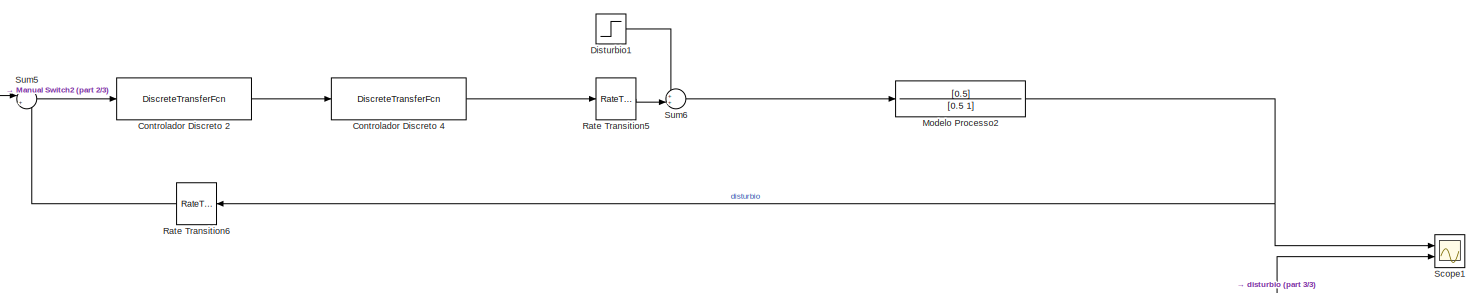
[diagram: root canvas - part 1/3, full width, top band]
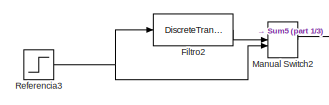
[diagram: root canvas - part 2/3, top left region]
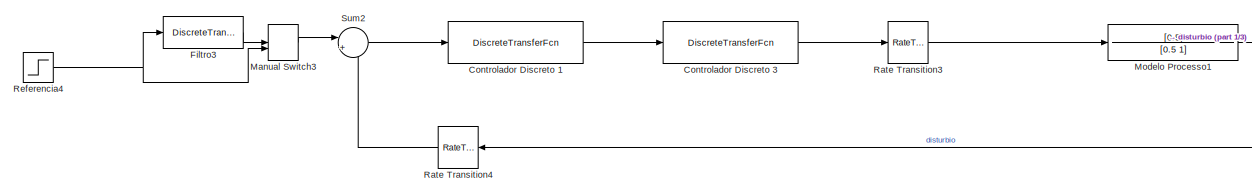
[diagram: root canvas - part 3/3, bottom center region]
MODEL slx_0917408c791c
KIND model
CONFIG AbsTol = auto
CONFIG EnableMultiTasking = off
CONFIG FixedStep = auto
CONFIG MaxStep = auto
CONFIG MinStep = auto
CONFIG RelTol = 1e-3
CONFIG SampleTimeConstraint = Unconstrained
CONFIG SolverName = VariableStepAuto
CONFIG StartTime = 0.0
CONFIG StopTime = 130
BLOCK [DiscreteTransferFcn] Controlador Discreto 1
  Denominator = [1 -1 0]
  InputPortMap = u0
  Numerator = [1 -1.86 0.8649]
  Ports = [1, 1]
BLOCK [DiscreteTransferFcn] Controlador Discreto 2
  Denominator = [1 -1 0]
  InputPortMap = u0
  Numerator = [1 -1.86 0.8649]
  Ports = [1, 1]
BLOCK [DiscreteTransferFcn] Controlador Discreto 3
  Denominator = [1 0.9305]
  InputPortMap = u0
  Numerator = [0.2779]
  Ports = [1, 1]
BLOCK [DiscreteTransferFcn] Controlador Discreto 4
  Denominator = [1 0.9305]
  InputPortMap = u0
  Numerator = [0.2779]
  Ports = [1, 1]
BLOCK [Step] Disturbio1
  SampleTime = Ts
  Time = 35
  VectorParams1D = off
BLOCK [DiscreteTransferFcn] Filtro2
  Denominator = [1 -0.87]
  InputPortMap = u0
  Numerator = [0.13]
  Ports = [1, 1]
BLOCK [DiscreteTransferFcn] Filtro3
  Denominator = [1 -0.87]
  InputPortMap = u0
  Numerator = [0.13]
  Ports = [1, 1]
BLOCK [ManualSwitch] Manual Switch2
BLOCK [ManualSwitch] Manual Switch3
BLOCK [TransferFcn] Modelo Processo1
  Denominator = [0.5 1]
  Numerator = [0.5]
BLOCK [TransferFcn] Modelo Processo2
  Denominator = [0.5 1]
  Numerator = [0.5]
BLOCK [RateTransition] Rate Transition3
  Integrity = off
  OutPortSampleTimeOpt = Inherit
BLOCK [RateTransition] Rate Transition4
  NameLocation = top
  OutPortSampleTime = Ts
BLOCK [RateTransition] Rate Transition5
  Integrity = off
  OutPortSampleTimeOpt = Inherit
BLOCK [RateTransition] Rate Transition6
  NameLocation = top
  OutPortSampleTime = Ts
BLOCK [Step] Referencia3
  SampleTime = Ts
BLOCK [Step] Referencia4
  SampleTime = Ts
BLOCK [Scope] Scope1
  Floating = off
  NumInputPorts = 2
  Ports = [2]
  ScopeSpecificationString = Simulink.scopes.TimeScopeBlockCfg('CurrentConfiguration', extmgr.ConfigurationSet(extmgr.Configuration('Core','General UI',true,'FigureColor',[0.8 0.8 0.8],'DisplayFullSourceName',true),extmgr.Configuration('Core','Source UI',true),extmgr.Configuration('Sources','WiredSimulink',true,'DataLoggingVariableName','ScopeData1'),extmgr.Configuration('Visuals','Time Domain',true,'SerializedDisplays',{stru...<+1842ch>
BLOCK [Sum] Sum2
  Inputs = |+-
  Ports = [2, 1]
BLOCK [Sum] Sum5
  Inputs = |+-
  Ports = [2, 1]
BLOCK [Sum] Sum6
  Inputs = ++|
  Ports = [2, 1]
LINE Controlador Discreto 1:1 -> Controlador Discreto 3:1
LINE Controlador Discreto 2:1 -> Controlador Discreto 4:1
LINE Controlador Discreto 3:1 -> Rate Transition3:1
LINE Controlador Discreto 4:1 -> Rate Transition5:1
LINE Disturbio1:1 -> Sum6:1
LINE Filtro2:1 -> Manual Switch2:1
LINE Filtro3:1 -> Manual Switch3:1
LINE Manual Switch2:1 -> Sum5:1
LINE Manual Switch3:1 -> Sum2:1
NET Modelo Processo1:1 -> Rate Transition4:1, Scope1:2
NET Modelo Processo2:1 -> Rate Transition6:1, Scope1:1
LINE Rate Transition3:1 -> Modelo Processo1:1
LINE Rate Transition4:1 -> Sum2:2
LINE Rate Transition5:1 -> Sum6:2
LINE Rate Transition6:1 -> Sum5:2
NET Referencia3:1 -> Filtro2:1, Manual Switch2:2
NET Referencia4:1 -> Filtro3:1, Manual Switch3:2
LINE Sum2:1 -> Controlador Discreto 1:1
LINE Sum5:1 -> Controlador Discreto 2:1
LINE Sum6:1 -> Modelo Processo2:1
note: NET lines group one-source signal fan-out (src -> all destinations, sorted); 1:1 wires keep LINE
